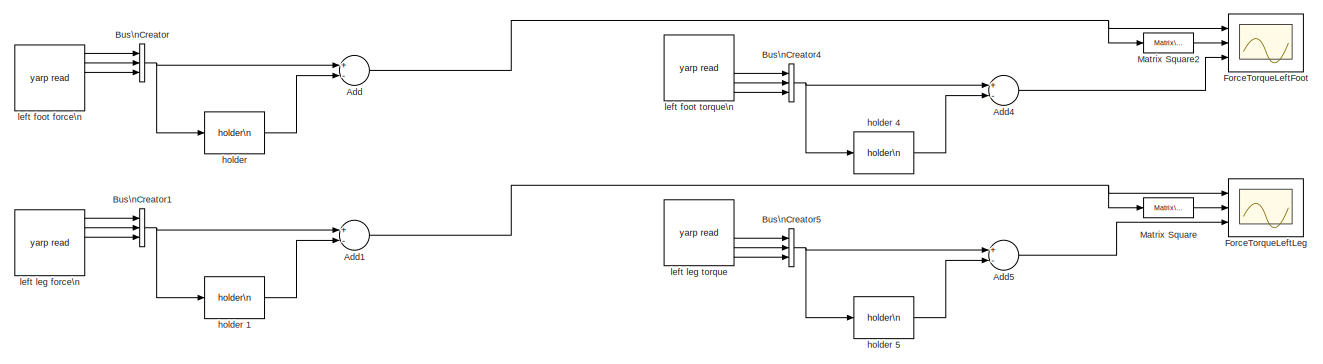
[diagram: root canvas - part 1/2, full width, top band]
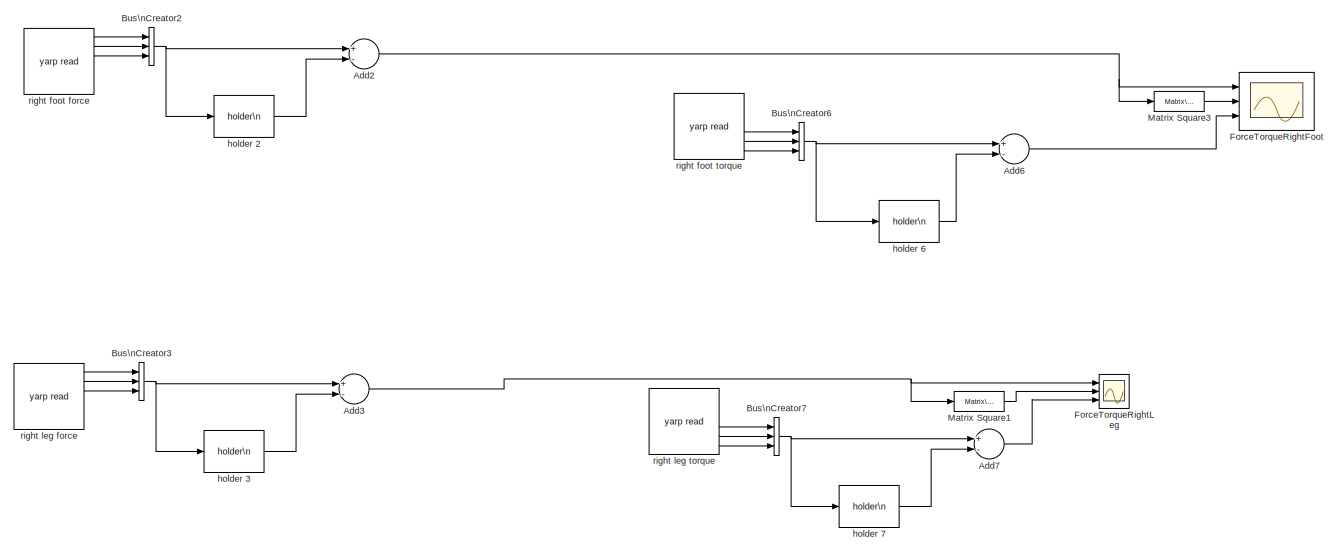
[diagram: root canvas - part 2/2, full width, bottom band]
MODEL ft_sensor_debug_iCubGenova03
KIND model
BLOCK [Sum] Add
  InputSameDT = off
  Inputs = +-
  OutDataTypeStr = Inherit: Inherit via internal rule
  Ports = [2, 1]
  SID = 35
  SaturateOnIntegerOverflow = off
BLOCK [Sum] Add1
  InputSameDT = off
  Inputs = +-
  OutDataTypeStr = Inherit: Inherit via internal rule
  Ports = [2, 1]
  SID = 37
  SaturateOnIntegerOverflow = off
BLOCK [Sum] Add2
  InputSameDT = off
  Inputs = +-
  OutDataTypeStr = Inherit: Inherit via internal rule
  Ports = [2, 1]
  SID = 42
  SaturateOnIntegerOverflow = off
BLOCK [Sum] Add3
  InputSameDT = off
  Inputs = +-
  OutDataTypeStr = Inherit: Inherit via internal rule
  Ports = [2, 1]
  SID = 43
  SaturateOnIntegerOverflow = off
BLOCK [Sum] Add4
  InputSameDT = off
  Inputs = +-
  OutDataTypeStr = Inherit: Inherit via internal rule
  Ports = [2, 1]
  SID = 70
  SaturateOnIntegerOverflow = off
BLOCK [Sum] Add5
  InputSameDT = off
  Inputs = +-
  OutDataTypeStr = Inherit: Inherit via internal rule
  Ports = [2, 1]
  SID = 71
  SaturateOnIntegerOverflow = off
BLOCK [Sum] Add6
  InputSameDT = off
  Inputs = +-
  OutDataTypeStr = Inherit: Inherit via internal rule
  Ports = [2, 1]
  SID = 80
  SaturateOnIntegerOverflow = off
BLOCK [Sum] Add7
  InputSameDT = off
  Inputs = +-
  OutDataTypeStr = Inherit: Inherit via internal rule
  Ports = [2, 1]
  SID = 81
  SaturateOnIntegerOverflow = off
BLOCK [BusCreator] Bus\nCreator
  DisplayOption = bar
  Inputs = 3
  Ports = [3, 1]
  SID = 34
BLOCK [BusCreator] Bus\nCreator1
  DisplayOption = bar
  Inputs = 3
  Ports = [3, 1]
  SID = 38
BLOCK [BusCreator] Bus\nCreator2
  DisplayOption = bar
  Inputs = 3
  Ports = [3, 1]
  SID = 44
BLOCK [BusCreator] Bus\nCreator3
  DisplayOption = bar
  Inputs = 3
  Ports = [3, 1]
  SID = 45
BLOCK [BusCreator] Bus\nCreator4
  DisplayOption = bar
  Inputs = 3
  Ports = [3, 1]
  SID = 72
BLOCK [BusCreator] Bus\nCreator5
  DisplayOption = bar
  Inputs = 3
  Ports = [3, 1]
  SID = 73
BLOCK [BusCreator] Bus\nCreator6
  DisplayOption = bar
  Inputs = 3
  Ports = [3, 1]
  SID = 82
BLOCK [BusCreator] Bus\nCreator7
  DisplayOption = bar
  Inputs = 3
  Ports = [3, 1]
  SID = 83
BLOCK [Scope] ForceTorqueLeftFoot
  DataFormat = StructureWithTime
  Floating = off
  LimitDataPoints = off
  NumInputPorts = 3
  Ports = [3]
  SID = 97
  SampleTime = 0
  ShowLegends = off
  YMax = 1~20~5
  YMin = -4~0~-5
BLOCK [Scope] ForceTorqueLeftLeg
  DataFormat = StructureWithTime
  Floating = off
  LimitDataPoints = off
  NumInputPorts = 3
  Ports = [3]
  SID = 90
  SampleTime = 0
  SaveName = ScopeData4
  ShowLegends = off
  TimeRange = 200000
  YMax = 10~1400~5
  YMin = -60~0~-5
BLOCK [Scope] ForceTorqueRightFoot
  DataFormat = StructureWithTime
  Floating = off
  LimitDataPoints = off
  NumInputPorts = 3
  Ports = [3]
  SID = 99
  SampleTime = 0
  SaveName = ScopeData1
  ShowLegends = off
  YMax = 1~20~5
  YMin = -4~0~-5
BLOCK [Scope] ForceTorqueRightLeg
  DataFormat = StructureWithTime
  Floating = off
  LimitDataPoints = off
  NumInputPorts = 3
  Ports = [3]
  SID = 93
  SampleTime = 0
  SaveName = ScopeData2
  ShowLegends = off
  TimeRange = 200000
  YMax = 10~1800~5
  YMin = -60~0~-5
BLOCK [Reference] Matrix Square  REF=dspmtrx3/Matrix\nSquare
  LockScale = off
  OutDataTypeStr = Inherit: Inherit via internal rule
  OutMax = []
  OutMin = []
  Ports = [1, 1]
  RndMeth = Floor
  SID = 95
  SaturateOnIntegerOverflow = off
  SourceBlock = dspmtrx3/Matrix\nSquare
  SourceType = Matrix Square
BLOCK [Reference] Matrix Square1  REF=dspmtrx3/Matrix\nSquare
  LockScale = off
  OutDataTypeStr = Inherit: Inherit via internal rule
  OutMax = []
  OutMin = []
  Ports = [1, 1]
  RndMeth = Floor
  SID = 96
  SaturateOnIntegerOverflow = off
  SourceBlock = dspmtrx3/Matrix\nSquare
  SourceType = Matrix Square
BLOCK [Reference] Matrix Square2  REF=dspmtrx3/Matrix\nSquare
  LockScale = off
  OutDataTypeStr = Inherit: Inherit via internal rule
  OutMax = []
  OutMin = []
  Ports = [1, 1]
  RndMeth = Floor
  SID = 98
  SaturateOnIntegerOverflow = off
  SourceBlock = dspmtrx3/Matrix\nSquare
  SourceType = Matrix Square
BLOCK [Reference] Matrix Square3  REF=dspmtrx3/Matrix\nSquare
  LockScale = off
  OutDataTypeStr = Inherit: Inherit via internal rule
  OutMax = []
  OutMin = []
  Ports = [1, 1]
  RndMeth = Floor
  SID = 100
  SaturateOnIntegerOverflow = off
  SourceBlock = dspmtrx3/Matrix\nSquare
  SourceType = Matrix Square
BLOCK [Reference] holder   REF=WBCLibrary/Utilities/holder\n
  Ports = [1, 1]
  SID = 52
  SourceBlock = WBCLibrary/Utilities/holder\n
  SourceType = Holder
BLOCK [Reference] holder 1  REF=WBCLibrary/Utilities/holder\n
  Ports = [1, 1]
  SID = 53
  SourceBlock = WBCLibrary/Utilities/holder\n
  SourceType = Holder
BLOCK [Reference] holder 2  REF=WBCLibrary/Utilities/holder\n
  Ports = [1, 1]
  SID = 54
  SourceBlock = WBCLibrary/Utilities/holder\n
  SourceType = Holder
BLOCK [Reference] holder 3  REF=WBCLibrary/Utilities/holder\n
  Ports = [1, 1]
  SID = 55
  SourceBlock = WBCLibrary/Utilities/holder\n
  SourceType = Holder
BLOCK [Reference] holder 4  REF=WBCLibrary/Utilities/holder\n
  Ports = [1, 1]
  SID = 76
  SourceBlock = WBCLibrary/Utilities/holder\n
  SourceType = Holder
BLOCK [Reference] holder 5  REF=WBCLibrary/Utilities/holder\n
  Ports = [1, 1]
  SID = 77
  SourceBlock = WBCLibrary/Utilities/holder\n
  SourceType = Holder
BLOCK [Reference] holder 6  REF=WBCLibrary/Utilities/holder\n
  Ports = [1, 1]
  SID = 86
  SourceBlock = WBCLibrary/Utilities/holder\n
  SourceType = Holder
BLOCK [Reference] holder 7  REF=WBCLibrary/Utilities/holder\n
  Ports = [1, 1]
  SID = 87
  SourceBlock = WBCLibrary/Utilities/holder\n
  SourceType = Holder
BLOCK [Reference] left foot force\n  REF=WBCLibrary/Utilities/yarp read
  Ports = [0, 6]
  SID = 1
  SourceBlock = WBCLibrary/Utilities/yarp read
  blocking = off
  from = ['/icub/left_foot/analog:o']
  num = 6
  timestamp = off
  to = '...'
BLOCK [Reference] left foot torque\n  REF=WBCLibrary/Utilities/yarp read
  Ports = [0, 6]
  SID = 78
  SourceBlock = WBCLibrary/Utilities/yarp read
  blocking = off
  from = ['/icub/left_foot/analog:o']
  num = 6
  timestamp = off
  to = '...'
BLOCK [Reference] left leg force\n  REF=WBCLibrary/Utilities/yarp read
  Ports = [0, 6]
  SID = 41
  SourceBlock = WBCLibrary/Utilities/yarp read
  blocking = off
  from = ['/icub/left_leg/analog:o']
  num = 6
  timestamp = off
  to = '...'
BLOCK [Reference] left leg torque  REF=WBCLibrary/Utilities/yarp read
  Ports = [0, 6]
  SID = 79
  SourceBlock = WBCLibrary/Utilities/yarp read
  blocking = off
  from = ['/icub/left_leg/analog:o']
  num = 6
  timestamp = off
  to = '...'
BLOCK [Reference] right foot force  REF=WBCLibrary/Utilities/yarp read
  Ports = [0, 6]
  SID = 50
  SourceBlock = WBCLibrary/Utilities/yarp read
  blocking = off
  from = ['/icub/right_foot/analog:o']
  num = 6
  timestamp = off
  to = '...'
BLOCK [Reference] right foot torque  REF=WBCLibrary/Utilities/yarp read
  Ports = [0, 6]
  SID = 88
  SourceBlock = WBCLibrary/Utilities/yarp read
  blocking = off
  from = ['/icub/right_foot/analog:o']
  num = 6
  timestamp = off
  to = '...'
BLOCK [Reference] right leg force  REF=WBCLibrary/Utilities/yarp read
  Ports = [0, 6]
  SID = 51
  SourceBlock = WBCLibrary/Utilities/yarp read
  blocking = off
  from = ['/icub/right_leg/analog:o']
  num = 6
  timestamp = off
  to = '...'
BLOCK [Reference] right leg torque  REF=WBCLibrary/Utilities/yarp read
  Ports = [0, 6]
  SID = 89
  SourceBlock = WBCLibrary/Utilities/yarp read
  blocking = off
  from = ['/icub/right_leg/analog:o']
  num = 6
  timestamp = off
  to = '...'
NET Add1:1 -> ForceTorqueLeftLeg:1, Matrix Square:1
NET Add2:1 -> ForceTorqueRightFoot:1, Matrix Square3:1
NET Add3:1 -> ForceTorqueRightLeg:1, Matrix Square1:1
LINE Add4:1 -> ForceTorqueLeftFoot:3
LINE Add5:1 -> ForceTorqueLeftLeg:3
LINE Add6:1 -> ForceTorqueRightFoot:3
LINE Add7:1 -> ForceTorqueRightLeg:3
NET Add:1 -> ForceTorqueLeftFoot:1, Matrix Square2:1
NET Bus\nCreator1:1 -> Add1:1, holder 1:1
NET Bus\nCreator2:1 -> Add2:1, holder 2:1
NET Bus\nCreator3:1 -> Add3:1, holder 3:1
NET Bus\nCreator4:1 -> Add4:1, holder 4:1
NET Bus\nCreator5:1 -> Add5:1, holder 5:1
NET Bus\nCreator6:1 -> Add6:1, holder 6:1
NET Bus\nCreator7:1 -> Add7:1, holder 7:1
NET Bus\nCreator:1 -> Add:1, holder :1
LINE Matrix Square1:1 -> ForceTorqueRightLeg:2
LINE Matrix Square2:1 -> ForceTorqueLeftFoot:2
LINE Matrix Square3:1 -> ForceTorqueRightFoot:2
LINE Matrix Square:1 -> ForceTorqueLeftLeg:2
LINE holder 1:1 -> Add1:2
LINE holder 2:1 -> Add2:2
LINE holder 3:1 -> Add3:2
LINE holder 4:1 -> Add4:2
LINE holder 5:1 -> Add5:2
LINE holder 6:1 -> Add6:2
LINE holder 7:1 -> Add7:2
LINE holder :1 -> Add:2
LINE left foot force\n:1 -> Bus\nCreator:1
LINE left foot force\n:2 -> Bus\nCreator:2
LINE left foot force\n:3 -> Bus\nCreator:3
LINE left foot torque\n:4 -> Bus\nCreator4:1
LINE left foot torque\n:5 -> Bus\nCreator4:2
LINE left foot torque\n:6 -> Bus\nCreator4:3
LINE left leg force\n:1 -> Bus\nCreator1:1
LINE left leg force\n:2 -> Bus\nCreator1:2
LINE left leg force\n:3 -> Bus\nCreator1:3
LINE left leg torque:4 -> Bus\nCreator5:1
LINE left leg torque:5 -> Bus\nCreator5:2
LINE left leg torque:6 -> Bus\nCreator5:3
LINE right foot force:1 -> Bus\nCreator2:1
LINE right foot force:2 -> Bus\nCreator2:2
LINE right foot force:3 -> Bus\nCreator2:3
LINE right foot torque:4 -> Bus\nCreator6:1
LINE right foot torque:5 -> Bus\nCreator6:2
LINE right foot torque:6 -> Bus\nCreator6:3
LINE right leg force:1 -> Bus\nCreator3:1
LINE right leg force:2 -> Bus\nCreator3:2
LINE right leg force:3 -> Bus\nCreator3:3
LINE right leg torque:4 -> Bus\nCreator7:1
LINE right leg torque:5 -> Bus\nCreator7:2
LINE right leg torque:6 -> Bus\nCreator7:3
note: NET lines group one-source signal fan-out (src -> all destinations, sorted); 1:1 wires keep LINE
